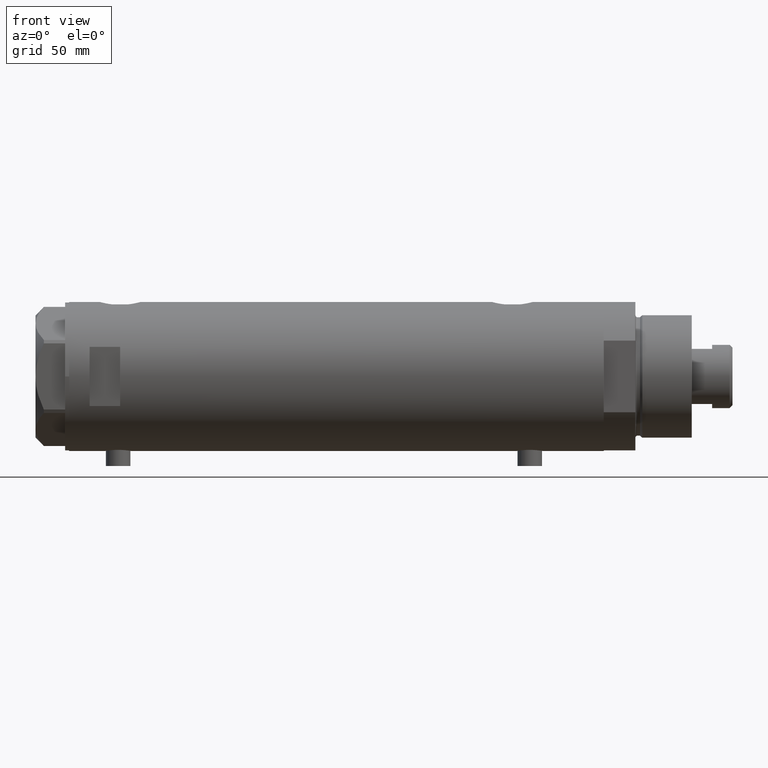
[diagram: clean part render]
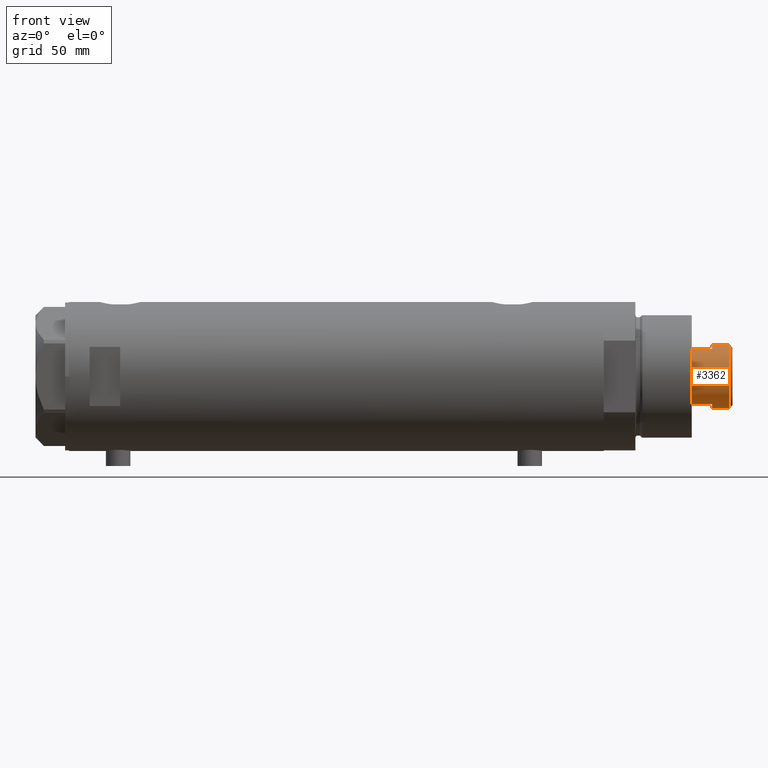
[diagram: same view with one face highlighted and labeled with its STEP entity id]
A machine part, front view. The second image highlights one B-rep face of the part: STEP entity #3362.
In plain terms, the highlighted cylindrical surface (edge-blend (fillet) strip) has radius 15.5 mm, axis along (-1, -0, 0).
Its self-contained STEP definition (entity closure, byte-faithful):
#145 = ORIENTED_EDGE ( 'NONE', *, *, #4091, .T. ) ;
#267 = DIRECTION ( 'NONE',  ( -0.000000000000000000, -0.000000000000000000, -1.000000000000000000 ) ) ;
#284 = CIRCLE ( 'NONE', #667, 15.49999999999999822 ) ;
#337 = CARTESIAN_POINT ( 'NONE',  ( 0.000000000000000000, 0.000000000000000000, 289.0199999999999818 ) ) ;
#346 = CARTESIAN_POINT ( 'NONE',  ( 0.000000000000000000, 0.000000000000000000, 279.0199999999999818 ) ) ;
#404 = CARTESIAN_POINT ( 'NONE',  ( 0.000000000000000000, 0.000000000000000000, 289.0199999999999818 ) ) ;
#511 = EDGE_CURVE ( 'NONE', #3421, #569, #284, .T. ) ;
#529 = DIRECTION ( 'NONE',  ( -0.000000000000000000, -0.000000000000000000, -1.000000000000000000 ) ) ;
#555 = VERTEX_POINT ( 'NONE', #4748 ) ;
#569 = VERTEX_POINT ( 'NONE', #669 ) ;
#588 = VERTEX_POINT ( 'NONE', #3967 ) ;
#648 = VERTEX_POINT ( 'NONE', #4436 ) ;
#667 = AXIS2_PLACEMENT_3D ( 'NONE', #4624, #1996, #2765 ) ;
#669 = CARTESIAN_POINT ( 'NONE',  ( -15.49999999999999822, 0.000000000000000000, 297.6200000000000614 ) ) ;
#672 = CIRCLE ( 'NONE', #1825, 15.50000000000000000 ) ;
#681 = CIRCLE ( 'NONE', #2446, 15.50000000000000000 ) ;
#765 = LINE ( 'NONE', #1117, #2207 ) ;
#1007 = EDGE_CURVE ( 'NONE', #3421, #555, #1187, .T. ) ;
#1013 = DIRECTION ( 'NONE',  ( 1.000000000000000000, 0.000000000000000000, 0.000000000000000000 ) ) ;
#1084 = DIRECTION ( 'NONE',  ( -0.000000000000000000, -0.000000000000000000, -1.000000000000000000 ) ) ;
#1097 = LINE ( 'NONE', #1171, #2731 ) ;
#1117 = CARTESIAN_POINT ( 'NONE',  ( 13.48630416385453046, -7.639999999999995239, 289.0199999999999818 ) ) ;
#1171 = CARTESIAN_POINT ( 'NONE',  ( -13.48630416385452691, -7.640000000000001457, 289.0199999999999818 ) ) ;
#1187 = LINE ( 'NONE', #3404, #2518 ) ;
#1237 = VERTEX_POINT ( 'NONE', #1497 ) ;
#1293 = ORIENTED_EDGE ( 'NONE', *, *, #511, .T. ) ;
#1339 = EDGE_LOOP ( 'NONE', ( #2778, #1293, #145, #1886, #4179, #1356, #3580, #3129 ) ) ;
#1356 = ORIENTED_EDGE ( 'NONE', *, *, #3592, .T. ) ;
#1364 = EDGE_CURVE ( 'NONE', #648, #2506, #1097, .T. ) ;
#1415 = EDGE_CURVE ( 'NONE', #1237, #2288, #765, .T. ) ;
#1438 = LINE ( 'NONE', #2920, #2844 ) ;
#1497 = CARTESIAN_POINT ( 'NONE',  ( 13.48630416385453046, -7.639999999999995239, 289.0199999999999818 ) ) ;
#1825 = AXIS2_PLACEMENT_3D ( 'NONE', #404, #1873, #4553 ) ;
#1873 = DIRECTION ( 'NONE',  ( 0.000000000000000000, 0.000000000000000000, 1.000000000000000000 ) ) ;
#1886 = ORIENTED_EDGE ( 'NONE', *, *, #2453, .T. ) ;
#1996 = DIRECTION ( 'NONE',  ( 0.000000000000000000, 0.000000000000000000, -1.000000000000000000 ) ) ;
#2128 = CARTESIAN_POINT ( 'NONE',  ( 0.000000000000000000, 0.000000000000000000, 289.0199999999999818 ) ) ;
#2207 = VECTOR ( 'NONE', #3035, 1000.000000000000000 ) ;
#2288 = VERTEX_POINT ( 'NONE', #4771 ) ;
#2371 = CIRCLE ( 'NONE', #4632, 15.49999999999999822 ) ;
#2446 = AXIS2_PLACEMENT_3D ( 'NONE', #2128, #3230, #3614 ) ;
#2453 = EDGE_CURVE ( 'NONE', #588, #648, #672, .T. ) ;
#2502 = FACE_OUTER_BOUND ( 'NONE', #1339, .T. ) ;
#2506 = VERTEX_POINT ( 'NONE', #3415 ) ;
#2518 = VECTOR ( 'NONE', #529, 1000.000000000000000 ) ;
#2632 = DIRECTION ( 'NONE',  ( -0.000000000000000000, -0.000000000000000000, -1.000000000000000000 ) ) ;
#2731 = VECTOR ( 'NONE', #2632, 1000.000000000000000 ) ;
#2765 = DIRECTION ( 'NONE',  ( 1.000000000000000000, 0.000000000000000000, 0.000000000000000000 ) ) ;
#2778 = ORIENTED_EDGE ( 'NONE', *, *, #1007, .F. ) ;
#2844 = VECTOR ( 'NONE', #267, 1000.000000000000000 ) ;
#2878 = DIRECTION ( 'NONE',  ( 0.000000000000000000, 0.000000000000000000, 1.000000000000000000 ) ) ;
#2920 = CARTESIAN_POINT ( 'NONE',  ( -15.49999999999999822, 0.000000000000000000, 289.0199999999999818 ) ) ;
#3035 = DIRECTION ( 'NONE',  ( -0.000000000000000000, -0.000000000000000000, -1.000000000000000000 ) ) ;
#3129 = ORIENTED_EDGE ( 'NONE', *, *, #3653, .T. ) ;
#3230 = DIRECTION ( 'NONE',  ( 0.000000000000000000, 0.000000000000000000, 1.000000000000000000 ) ) ;
#3275 = CYLINDRICAL_SURFACE ( 'NONE', #3770, 15.49999999999999822 ) ;
#3362 = ADVANCED_FACE ( 'NONE', ( #2502 ), #3275, .T. ) ;
#3404 = CARTESIAN_POINT ( 'NONE',  ( 15.49999999999999822, 1.898202538678397163E-15, 289.0199999999999818 ) ) ;
#3415 = CARTESIAN_POINT ( 'NONE',  ( -13.48630416385452513, -7.639999999999977476, 279.0199999999999818 ) ) ;
#3421 = VERTEX_POINT ( 'NONE', #4772 ) ;
#3580 = ORIENTED_EDGE ( 'NONE', *, *, #1415, .F. ) ;
#3592 = EDGE_CURVE ( 'NONE', #2506, #2288, #2371, .T. ) ;
#3604 = DIRECTION ( 'NONE',  ( -1.000000000000000000, 0.000000000000000000, 0.000000000000000000 ) ) ;
#3614 = DIRECTION ( 'NONE',  ( 1.000000000000000000, 0.000000000000000000, 0.000000000000000000 ) ) ;
#3653 = EDGE_CURVE ( 'NONE', #1237, #555, #681, .T. ) ;
#3770 = AXIS2_PLACEMENT_3D ( 'NONE', #337, #1084, #3604 ) ;
#3967 = CARTESIAN_POINT ( 'NONE',  ( -15.50000000000000178, 0.000000000000000000, 289.0199999999999818 ) ) ;
#4091 = EDGE_CURVE ( 'NONE', #569, #588, #1438, .T. ) ;
#4179 = ORIENTED_EDGE ( 'NONE', *, *, #1364, .T. ) ;
#4436 = CARTESIAN_POINT ( 'NONE',  ( -13.48630416385452335, -7.640000000000004121, 289.0199999999999818 ) ) ;
#4553 = DIRECTION ( 'NONE',  ( 1.000000000000000000, 0.000000000000000000, 0.000000000000000000 ) ) ;
#4624 = CARTESIAN_POINT ( 'NONE',  ( 0.000000000000000000, 0.000000000000000000, 297.6200000000000614 ) ) ;
#4632 = AXIS2_PLACEMENT_3D ( 'NONE', #346, #2878, #1013 ) ;
#4748 = CARTESIAN_POINT ( 'NONE',  ( 15.50000000000000178, 1.898202538678397557E-15, 289.0199999999999818 ) ) ;
#4771 = CARTESIAN_POINT ( 'NONE',  ( 13.48630416385452691, -7.639999999999970370, 279.0199999999999818 ) ) ;
#4772 = CARTESIAN_POINT ( 'NONE',  ( 15.49999999999999822, 1.898202538678397163E-15, 297.6200000000000614 ) ) ;